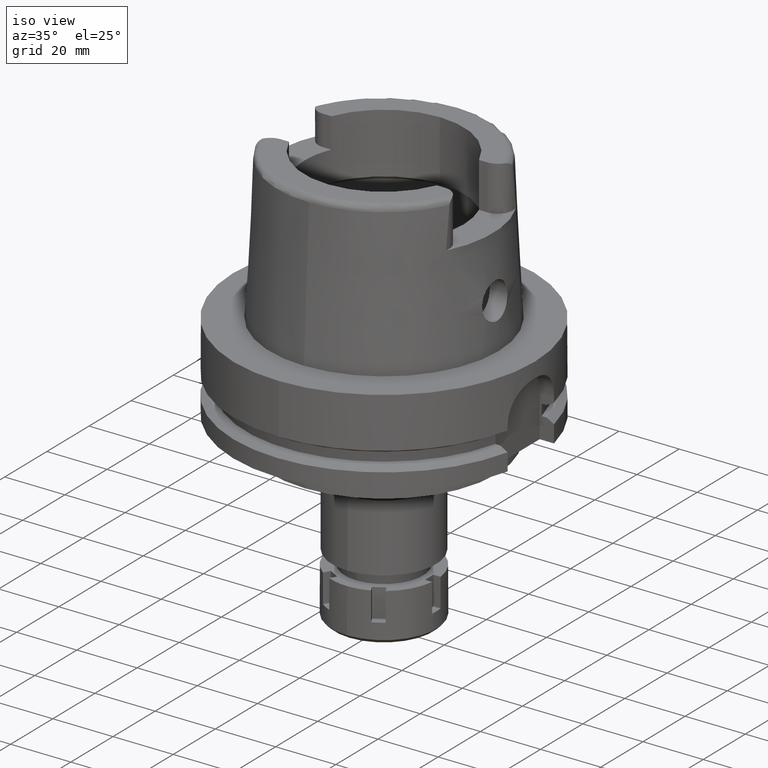
[diagram: clean part render]
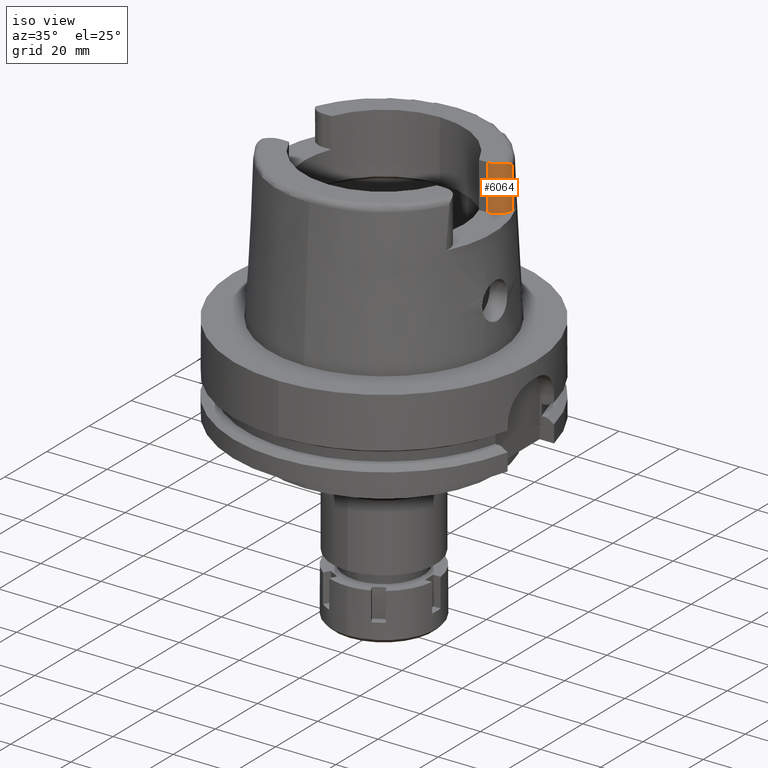
[diagram: same view with one face highlighted and labeled with its STEP entity id]
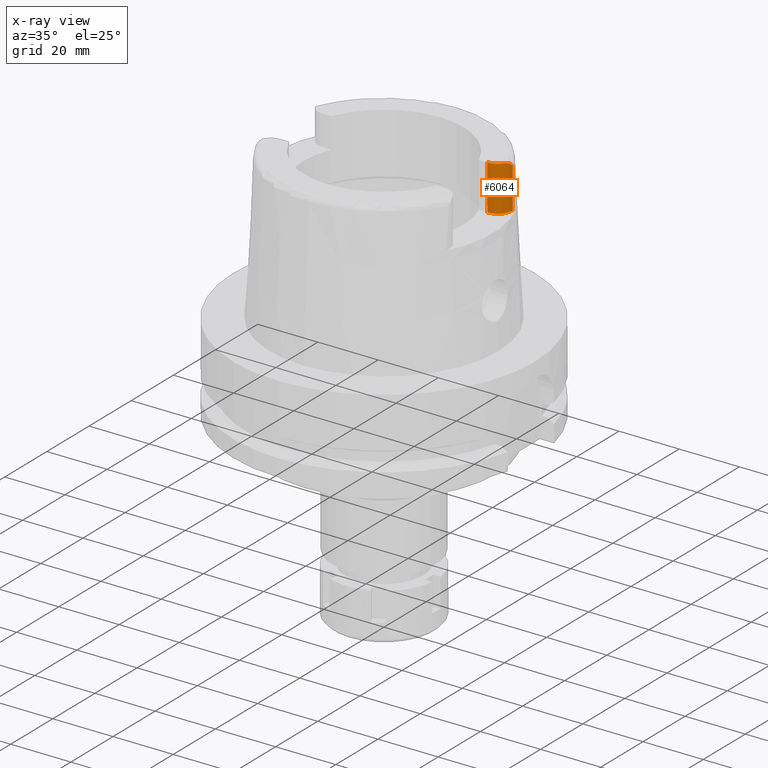
[diagram: x-ray of the same camera — body ghosted, the highlighted face saturated]
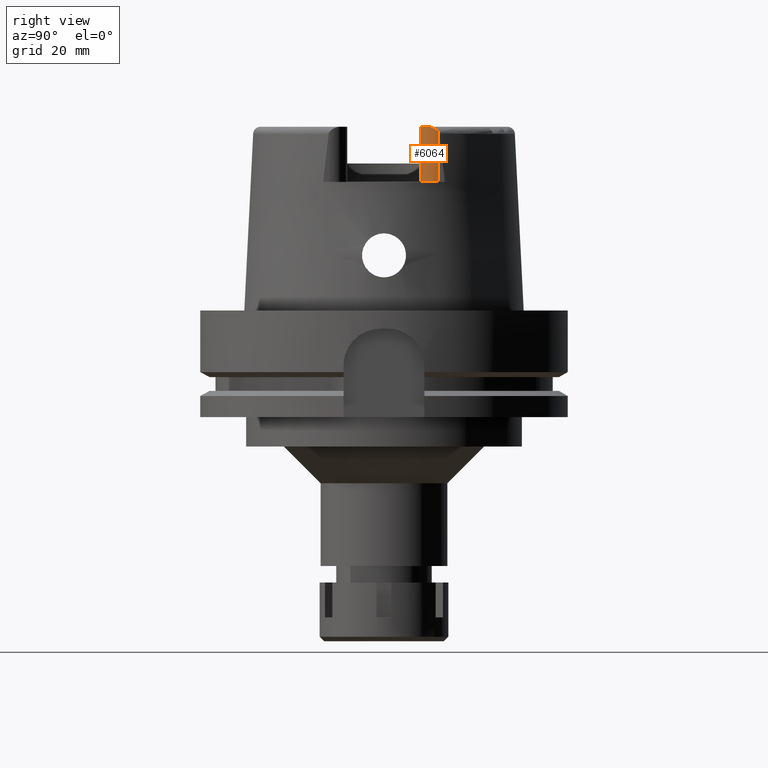
[diagram: same view with one face highlighted and labeled with its STEP entity id]
A machine part, iso view. The second image highlights one B-rep face of the part: STEP entity #6064.
The next image is the same camera in x-ray: the body ghosted, the highlighted face saturated — about 0% of this face is hidden behind the body in this view.
A second angle (right view) of the same face is appended — the face is thin or edge-on in the first view.
In plain terms, the highlighted cylindrical surface (edge-blend (fillet) strip) has radius 4.88 mm, axis along (0, 0, 1).
Its self-contained STEP definition (entity closure, byte-faithful):
#11 = CARTESIAN_POINT ( 'NONE',  ( 27.36999999999999744, 10.00999999999999979, 35.00000000000000000 ) ) ;
#107 = EDGE_CURVE ( 'NONE', #5457, #2980, #2418, .T. ) ;
#243 = CYLINDRICAL_SURFACE ( 'NONE', #2439, 4.880000000000002558 ) ;
#276 = ORIENTED_EDGE ( 'NONE', *, *, #2868, .T. ) ;
#330 = CARTESIAN_POINT ( 'NONE',  ( 32.14188386526129193, 13.86758871784797442, 49.42043352607292661 ) ) ;
#388 = ORIENTED_EDGE ( 'NONE', *, *, #5344, .F. ) ;
#391 = CARTESIAN_POINT ( 'NONE',  ( 32.12039614731093451, 13.77276980601341094, 49.47447966949119547 ) ) ;
#458 = CARTESIAN_POINT ( 'NONE',  ( 32.11886389109825757, 13.76626208047166955, 49.47811533726793698 ) ) ;
#468 = DIRECTION ( 'NONE',  ( 0.0000000000000000000, -1.000000000000000000, 0.0000000000000000000 ) ) ;
#695 = CARTESIAN_POINT ( 'NONE',  ( 27.36999999999999744, 10.00999999999999979, 50.00000000000000000 ) ) ;
#798 = CARTESIAN_POINT ( 'NONE',  ( 32.18007780860112632, 14.06479252684399306, 49.29882033562910237 ) ) ;
#830 = CARTESIAN_POINT ( 'NONE',  ( 32.16955740305987632, 14.00540236398003913, 49.33693240149577264 ) ) ;
#922 = CARTESIAN_POINT ( 'NONE',  ( 32.03653501946654103, 13.45369441279295231, 49.64185035235090027 ) ) ;
#1150 = EDGE_LOOP ( 'NONE', ( #2812, #2857, #388, #276, #3893 ) ) ;
#1302 = CARTESIAN_POINT ( 'NONE',  ( 27.36999999999999744, 14.89000000000000057, 50.00000000000000000 ) ) ;
#1338 = CIRCLE ( 'NONE', #2332, 4.880000000000001670 ) ;
#1341 = CARTESIAN_POINT ( 'NONE',  ( 27.36999999999999744, 14.89000000000000057, 35.00000000000000000 ) ) ;
#1421 = CARTESIAN_POINT ( 'NONE',  ( 31.35385269249000473, 12.07161079256999869, 50.00000000000000000 ) ) ;
#1611 = DIRECTION ( 'NONE',  ( 0.0000000000000000000, 0.0000000000000000000, 1.000000000000000000 ) ) ;
#1810 = VECTOR ( 'NONE', #5531, 1000.000000000000000 ) ;
#1825 = CARTESIAN_POINT ( 'NONE',  ( 32.25000000000000000, 14.89000000000000057, 48.54599893821999501 ) ) ;
#1885 = CARTESIAN_POINT ( 'NONE',  ( 32.23895034589975239, 14.56111395340550096, 48.91740987309920285 ) ) ;
#2186 = DIRECTION ( 'NONE',  ( 0.0000000000000000000, 0.0000000000000000000, 1.000000000000000000 ) ) ;
#2232 = CARTESIAN_POINT ( 'NONE',  ( 31.52232710221193557, 12.30975293029386108, 50.00000000000000000 ) ) ;
#2280 = CARTESIAN_POINT ( 'NONE',  ( 32.25000000000000000, 14.89000000000000057, 48.54599893821999501 ) ) ;
#2289 = CARTESIAN_POINT ( 'NONE',  ( 32.15148969403717416, 13.91392502001842679, 49.39281420108272158 ) ) ;
#2332 = AXIS2_PLACEMENT_3D ( 'NONE', #1302, #4123, #2698 ) ;
#2353 = CARTESIAN_POINT ( 'NONE',  ( 32.08035231750172755, 13.60495368042076869, 49.56757950383779132 ) ) ;
#2418 = CIRCLE ( 'NONE', #3986, 4.879999999999999005 ) ;
#2439 = AXIS2_PLACEMENT_3D ( 'NONE', #2544, #1611, #4929 ) ;
#2544 = CARTESIAN_POINT ( 'NONE',  ( 27.36999999999999744, 14.89000000000000057, 50.00000000000000000 ) ) ;
#2676 = CARTESIAN_POINT ( 'NONE',  ( 32.25000000000000000, 14.89000000000000057, 48.54599893821999501 ) ) ;
#2677 = LINE ( 'NONE', #4607, #3380 ) ;
#2698 = DIRECTION ( 'NONE',  ( 0.8163632566568778115, -0.5775387720149849358, 0.0000000000000000000 ) ) ;
#2718 = VERTEX_POINT ( 'NONE', #2280 ) ;
#2755 = CARTESIAN_POINT ( 'NONE',  ( 31.35385269249000473, 12.07161079256999869, 50.00000000000000000 ) ) ;
#2800 = EDGE_CURVE ( 'NONE', #5457, #5752, #2677, .T. ) ;
#2812 = ORIENTED_EDGE ( 'NONE', *, *, #2800, .F. ) ;
#2816 = CARTESIAN_POINT ( 'NONE',  ( 31.95925560088462447, 13.22885168131000988, 49.73836054508571891 ) ) ;
#2857 = ORIENTED_EDGE ( 'NONE', *, *, #107, .T. ) ;
#2868 = EDGE_CURVE ( 'NONE', #2718, #3005, #4138, .T. ) ;
#2980 = VERTEX_POINT ( 'NONE', #4862 ) ;
#3005 = VERTEX_POINT ( 'NONE', #1421 ) ;
#3160 = CARTESIAN_POINT ( 'NONE',  ( 32.23669135309219769, 14.52861631482705640, 48.94687892009631014 ) ) ;
#3253 = CARTESIAN_POINT ( 'NONE',  ( 32.23205443838990902, 14.47171869214828810, 48.99605636501363648 ) ) ;
#3380 = VECTOR ( 'NONE', #2186, 1000.000000000000000 ) ;
#3646 = CARTESIAN_POINT ( 'NONE',  ( 32.23112235272199655, 14.46098705791328420, 49.00514281871901545 ) ) ;
#3677 = CARTESIAN_POINT ( 'NONE',  ( 32.24918061190419394, 14.77410710238133262, 48.70187583362127270 ) ) ;
#3689 = DIRECTION ( 'NONE',  ( 0.0000000000000000000, 0.0000000000000000000, 1.000000000000000000 ) ) ;
#3711 = CARTESIAN_POINT ( 'NONE',  ( 32.23397439908591622, 14.49467018908008420, 48.97638098469925438 ) ) ;
#3770 = CARTESIAN_POINT ( 'NONE',  ( 32.12411354023490162, 13.78869563276217391, 49.46554120683054379 ) ) ;
#3893 = ORIENTED_EDGE ( 'NONE', *, *, #6123, .T. ) ;
#3986 = AXIS2_PLACEMENT_3D ( 'NONE', #1341, #3689, #468 ) ;
#4123 = DIRECTION ( 'NONE',  ( 0.0000000000000000000, 0.0000000000000000000, -1.000000000000000000 ) ) ;
#4138 = B_SPLINE_CURVE_WITH_KNOTS ( 'NONE', 3,
 ( #1825, #5576, #3677, #5676, #6085, #1885, #3160, #3711, #3253, #3646, #4238, #5541, #798, #830, #2289, #330, #5172, #3770, #391, #458, #2353, #922, #2816, #5642, #5611, #6143, #4708, #2232, #2755 ),
 .UNSPECIFIED., .F., .F.,
 ( 4, 2, 2, 1, 2, 2, 2, 2, 1, 1, 2, 2, 2, 2, 2, 4 ),
 ( 0.0000000000000000000, 0.1249999999999828748, 0.1874999999999779066, 0.2187499999999773237, 0.2343749999999779343, 0.2499999999999785172, 0.3749999999999740208, 0.4374999999999737432, 0.4687499999999735767, 0.4843749999999735212, 0.4921874999999740763, 0.4999999999999746869, 0.6249999999999782396, 0.6874999999999815703, 0.7499999999999846789, 1.000000000000000000 ),
 .UNSPECIFIED. ) ;
#4238 = CARTESIAN_POINT ( 'NONE',  ( 32.22073351355209780, 14.34668345540136869, 49.10054221101719918 ) ) ;
#4607 = CARTESIAN_POINT ( 'NONE',  ( 27.36999999999999744, 10.00999999999999979, 35.00000000000000000 ) ) ;
#4696 = LINE ( 'NONE', #2676, #1810 ) ;
#4708 = CARTESIAN_POINT ( 'NONE',  ( 31.67622859466838392, 12.57267652896792676, 49.95647290208025026 ) ) ;
#4862 = CARTESIAN_POINT ( 'NONE',  ( 32.25000000000000000, 14.89000000000000057, 35.00000000000000000 ) ) ;
#4929 = DIRECTION ( 'NONE',  ( 1.000000000000000000, 0.0000000000000000000, 0.0000000000000000000 ) ) ;
#5172 = CARTESIAN_POINT ( 'NONE',  ( 32.12960978261050826, 13.81251354444894552, 49.45209331598908875 ) ) ;
#5344 = EDGE_CURVE ( 'NONE', #2718, #2980, #4696, .T. ) ;
#5425 = FACE_OUTER_BOUND ( 'NONE', #1150, .T. ) ;
#5457 = VERTEX_POINT ( 'NONE', #11 ) ;
#5531 = DIRECTION ( 'NONE',  ( 2.098162679624000168E-14, 0.0000000000000000000, -1.000000000000000000 ) ) ;
#5541 = CARTESIAN_POINT ( 'NONE',  ( 32.20765348317598864, 14.23794757042589154, 49.18191153960288631 ) ) ;
#5576 = CARTESIAN_POINT ( 'NONE',  ( 32.25000000000000000, 14.83731662173431154, 48.62381998998881727 ) ) ;
#5611 = CARTESIAN_POINT ( 'NONE',  ( 31.87233780459897758, 13.00592699910448147, 49.82245733779150498 ) ) ;
#5642 = CARTESIAN_POINT ( 'NONE',  ( 31.93157148333863304, 13.15424587518382182, 49.76804792932485810 ) ) ;
#5676 = CARTESIAN_POINT ( 'NONE',  ( 32.24488529250736235, 14.66361087322841605, 48.81931178686541983 ) ) ;
#5752 = VERTEX_POINT ( 'NONE', #695 ) ;
#6064 = ADVANCED_FACE ( 'NONE', ( #5425 ), #243, .T. ) ;
#6085 = CARTESIAN_POINT ( 'NONE',  ( 32.24293613866243646, 14.62416659644485506, 48.85851580257939730 ) ) ;
#6123 = EDGE_CURVE ( 'NONE', #3005, #5752, #1338, .T. ) ;
#6143 = CARTESIAN_POINT ( 'NONE',  ( 31.84007183596708401, 12.93064874767761729, 49.84765515728091145 ) ) ;